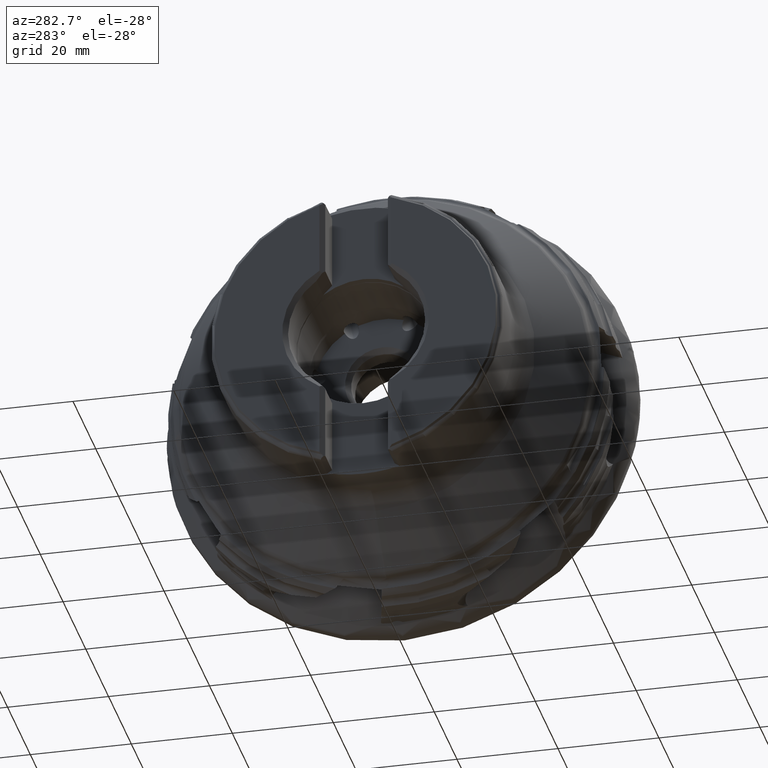
[diagram: clean part render]
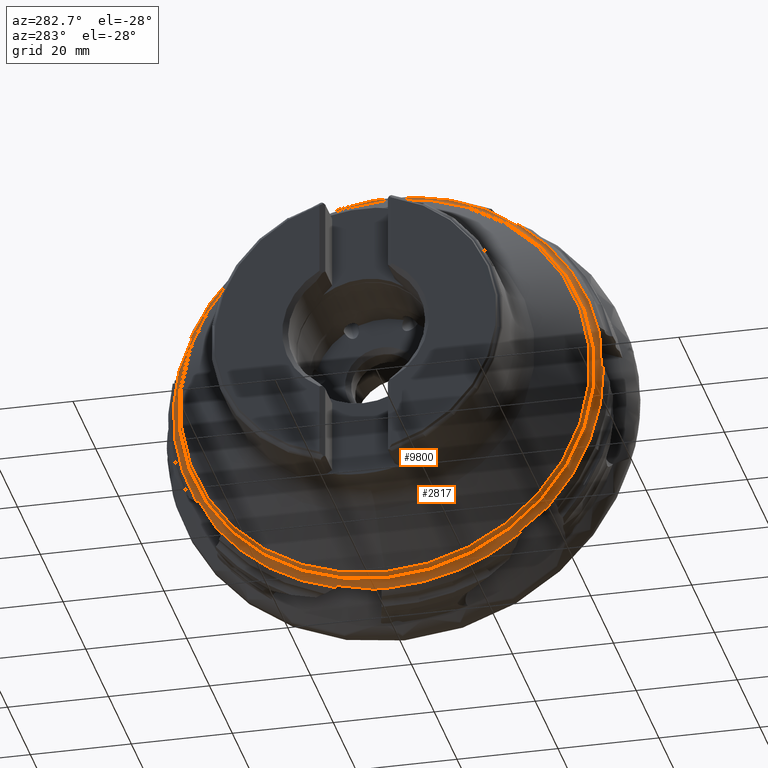
[diagram: same view with one multi-face feature highlighted, each face labeled with its STEP entity id]
A machine part, auxiliary view. The highlighted faces form ONE feature: a constant-radius fillet chain: 2 tangent blend faces with common blend radius 1.89705 mm. The faces share edges in the B-rep.
Their STEP definitions:
[1] entity #9800 (Torus):
#42 = EDGE_CURVE ( 'NONE', #5690, #9942, #3949, .T. ) ;
#65 = VERTEX_POINT ( 'NONE', #6618 ) ;
#110 = ORIENTED_EDGE ( 'NONE', *, *, #5163, .F. ) ;
#153 = CARTESIAN_POINT ( 'NONE',  ( -20.27991268844676000, -25.66552961031469900, 33.98024424121751300 ) ) ;
#171 = CARTESIAN_POINT ( 'NONE',  ( -20.40715901979479000, 38.84886634079023100, 16.50148767896594000 ) ) ;
#187 = EDGE_LOOP ( 'NONE', ( #5314 ) ) ;
#188 = CARTESIAN_POINT ( 'NONE',  ( -20.27390257677669500, 38.00462549020680600, -19.27603672877068100 ) ) ;
#231 = CARTESIAN_POINT ( 'NONE',  ( -20.35922816812485800, 10.23902312688475500, -41.05340053388846400 ) ) ;
#238 = CARTESIAN_POINT ( 'NONE',  ( -20.27390257677748400, 0.0000000000000000000, 0.0000000000000000000 ) ) ;
#291 = EDGE_LOOP ( 'NONE', ( #6587, #3863, #4313, #1670, #110, #9677, #691, #10155, #2792, #5787, #7571, #660, #2691, #8203, #879, #3857, #9333, #5791, #3110, #8363, #7803, #7914, #8976, #7085, #1132, #6197, #7730, #4458 ) ) ;
#306 = CARTESIAN_POINT ( 'NONE',  ( -20.27390257677747000, 3.001633132048042700, -42.50773281604240600 ) ) ;
#419 = CARTESIAN_POINT ( 'NONE',  ( -20.27390257678396400, 17.30588700704285200, 38.94128176523447800 ) ) ;
#443 = CARTESIAN_POINT ( 'NONE',  ( -20.29390607841304800, -26.19366640944782200, -33.50116019667047600 ) ) ;
#559 = DIRECTION ( 'NONE',  ( 1.000000000000000000, -0.0000000000000000000, -0.0000000000000000000 ) ) ;
#625 = VERTEX_POINT ( 'NONE', #1553 ) ;
#630 = CARTESIAN_POINT ( 'NONE',  ( -20.28659722884095700, 39.16528048154000900, 16.64225264424900500 ) ) ;
#660 = ORIENTED_EDGE ( 'NONE', *, *, #6930, .T. ) ;
#671 = VERTEX_POINT ( 'NONE', #2388 ) ;
#691 = ORIENTED_EDGE ( 'NONE', *, *, #3461, .T. ) ;
#740 = B_SPLINE_CURVE_WITH_KNOTS ( 'NONE', 3,
 ( #3265, #900, #9609, #4862 ),
 .UNSPECIFIED., .F., .F.,
 ( 4, 4 ),
 ( 0.003164471214998840600, 0.003502429980398643800 ),
 .UNSPECIFIED. ) ;
#746 = CARTESIAN_POINT ( 'NONE',  ( -20.27390257678396800, -31.64856068802031400, -28.53569268471704100 ) ) ;
#823 = EDGE_CURVE ( 'NONE', #1354, #625, #1187, .T. ) ;
#834 = CARTESIAN_POINT ( 'NONE',  ( -20.29390607841303800, -42.51895811748284600, 0.7576906335383720700 ) ) ;
#851 = CARTESIAN_POINT ( 'NONE',  ( -20.29390607841304100, 37.88363669890150500, -19.32009226059894000 ) ) ;
#863 = CIRCLE ( 'NONE', #3859, 42.61357941571510100 ) ;
#879 = ORIENTED_EDGE ( 'NONE', *, *, #9206, .T. ) ;
#900 = CARTESIAN_POINT ( 'NONE',  ( -20.32175350409022500, 37.79061323697450800, -19.26130577989827900 ) ) ;
#929 = VERTEX_POINT ( 'NONE', #4315 ) ;
#1009 = VERTEX_POINT ( 'NONE', #7599 ) ;
#1028 = DIRECTION ( 'NONE',  ( 0.0000000000000000000, 0.0000000000000000000, -1.000000000000000000 ) ) ;
#1132 = ORIENTED_EDGE ( 'NONE', *, *, #8603, .F. ) ;
#1187 = B_SPLINE_CURVE_WITH_KNOTS ( 'NONE', 3,
 ( #4110, #9636, #4886, #171 ),
 .UNSPECIFIED., .F., .F.,
 ( 4, 4 ),
 ( 0.003164471214998907400, 0.003502429980399479500 ),
 .UNSPECIFIED. ) ;
#1236 = B_SPLINE_CURVE_WITH_KNOTS ( 'NONE', 3,
 ( #5685, #153, #6481, #1737 ),
 .UNSPECIFIED., .F., .F.,
 ( 4, 4 ),
 ( 0.0000000000000000000, 0.0001302810989882844200 ),
 .UNSPECIFIED. ) ;
#1245 = CIRCLE ( 'NONE', #2514, 42.61357941571510100 ) ;
#1281 = CARTESIAN_POINT ( 'NONE',  ( -20.32175350409028500, -26.11821028865592700, -33.42106282706856700 ) ) ;
#1354 = VERTEX_POINT ( 'NONE', #6980 ) ;
#1376 = CARTESIAN_POINT ( 'NONE',  ( -20.27390257677669500, -42.60838944876703500, 0.6650557886314485400 ) ) ;
#1490 = CARTESIAN_POINT ( 'NONE',  ( -20.40715901979700000, -25.40971435915973600, 33.70281780162805100 ) ) ;
#1492 = CIRCLE ( 'NONE', #7173, 42.61357941571510100 ) ;
#1512 = CARTESIAN_POINT ( 'NONE',  ( -20.40715901979621400, 37.61244287389755700, -19.15300636040086200 ) ) ;
#1553 = CARTESIAN_POINT ( 'NONE',  ( -20.40715901979479000, 38.84886634079023100, 16.50148767896594000 ) ) ;
#1639 = CARTESIAN_POINT ( 'NONE',  ( -20.27390257677669500, -42.60838944876703500, 0.6650557886314485400 ) ) ;
#1670 = ORIENTED_EDGE ( 'NONE', *, *, #4742, .T. ) ;
#1684 = VERTEX_POINT ( 'NONE', #2534 ) ;
#1689 = CARTESIAN_POINT ( 'NONE',  ( -20.27390257677669500, -26.17350605154473800, -33.62833227487716000 ) ) ;
#1737 = CARTESIAN_POINT ( 'NONE',  ( -20.29390607841303400, -25.58021611678396600, 33.97187716201502600 ) ) ;
#1824 = CARTESIAN_POINT ( 'NONE',  ( -20.27390257677669200, 39.19520319731422100, 16.72283459647445300 ) ) ;
#1895 = VERTEX_POINT ( 'NONE', #9236 ) ;
#1914 = VERTEX_POINT ( 'NONE', #3711 ) ;
#1928 = B_SPLINE_CURVE_WITH_KNOTS ( 'NONE', 3,
 ( #8856, #4892, #8098, #3326 ),
 .UNSPECIFIED., .F., .F.,
 ( 4, 4 ),
 ( 0.0000000000000000000, 0.0001302810989882629800 ),
 .UNSPECIFIED. ) ;
#2150 = CARTESIAN_POINT ( 'NONE',  ( -20.27991268844676000, 39.17993933996468300, 16.68258859372322400 ) ) ;
#2151 = DIRECTION ( 'NONE',  ( 1.000000000000000000, -0.0000000000000000000, -0.0000000000000000000 ) ) ;
#2278 = CARTESIAN_POINT ( 'NONE',  ( -20.41323448215182500, -26.94036568468216700, -32.49872171569420900 ) ) ;
#2284 = CARTESIAN_POINT ( 'NONE',  ( -20.29390607841303800, -42.51895811748284600, 0.7576906335383720700 ) ) ;
#2311 = CARTESIAN_POINT ( 'NONE',  ( -20.41323092975133900, 37.04242626577263300, -20.24370872581303300 ) ) ;
#2388 = CARTESIAN_POINT ( 'NONE',  ( -20.27390257678396800, 34.05024170782139900, -25.62222063480950500 ) ) ;
#2411 = EDGE_CURVE ( 'NONE', #6949, #6693, #8402, .T. ) ;
#2431 = CARTESIAN_POINT ( 'NONE',  ( -20.28659722884096400, -42.54827805495050100, 0.7265004000892599800 ) ) ;
#2501 = CARTESIAN_POINT ( 'NONE',  ( -20.35940494956136600, 10.23276626978791300, 41.05456990465028600 ) ) ;
#2514 = AXIS2_PLACEMENT_3D ( 'NONE', #9163, #4417, #9977 ) ;
#2534 = CARTESIAN_POINT ( 'NONE',  ( -20.40715901979580600, 10.20115736728382000, 40.95692737439713900 ) ) ;
#2614 = CARTESIAN_POINT ( 'NONE',  ( -20.27390257677748400, 0.0000000000000000000, 0.0000000000000000000 ) ) ;
#2691 = ORIENTED_EDGE ( 'NONE', *, *, #5935, .F. ) ;
#2744 = B_SPLINE_CURVE_WITH_KNOTS ( 'NONE', 3,
 ( #7617, #4406, #3656, #9192, #4449, #10008 ),
 .UNSPECIFIED., .F., .F.,
 ( 4, 2, 4 ),
 ( -0.0009818931826717429200, 0.002711366514450313300, 0.006404626211572369100 ),
 .UNSPECIFIED. ) ;
#2792 = ORIENTED_EDGE ( 'NONE', *, *, #6588, .F. ) ;
#2958 = CARTESIAN_POINT ( 'NONE',  ( -20.35953939043259100, -25.46554710199877600, 33.78858881710355900 ) ) ;
#3012 = B_SPLINE_CURVE_WITH_KNOTS ( 'NONE', 3,
 ( #6540, #7336, #8133, #3355 ),
 .UNSPECIFIED., .F., .F.,
 ( 4, 4 ),
 ( 0.0000000000000000000, 0.0001302810989882779900 ),
 .UNSPECIFIED. ) ;
#3063 = CARTESIAN_POINT ( 'NONE',  ( -20.34817897259623700, -21.40065156276884300, 36.56142175246898800 ) ) ;
#3070 = B_SPLINE_CURVE_WITH_KNOTS ( 'NONE', 3,
 ( #6454, #8016, #2501, #8050 ),
 .UNSPECIFIED., .F., .F.,
 ( 4, 4 ),
 ( 0.001567118524686887400, 0.001903557885389236100 ),
 .UNSPECIFIED. ) ;
#3080 = CARTESIAN_POINT ( 'NONE',  ( -22.03845147591463400, 0.0000000000000000000, 0.0000000000000000000 ) ) ;
#3092 = CARTESIAN_POINT ( 'NONE',  ( -20.40089338809871200, 36.45699305478845500, -21.32627434523523000 ) ) ;
#3110 = ORIENTED_EDGE ( 'NONE', *, *, #2411, .T. ) ;
#3187 = CARTESIAN_POINT ( 'NONE',  ( -20.27991268844676400, 37.96398384506117900, -19.29021356757540700 ) ) ;
#3205 = CARTESIAN_POINT ( 'NONE',  ( -20.27991268844676400, -42.57807569716300800, 0.6956139715343675500 ) ) ;
#3261 = CARTESIAN_POINT ( 'NONE',  ( -20.27390257677669200, 10.23281258224895400, 41.36673418673947100 ) ) ;
#3265 = CARTESIAN_POINT ( 'NONE',  ( -20.29390607841304100, 37.88363669890150500, -19.32009226059894000 ) ) ;
#3288 = DIRECTION ( 'NONE',  ( 1.000000000000000000, -0.0000000000000000000, -0.0000000000000000000 ) ) ;
#3292 = VERTEX_POINT ( 'NONE', #4736 ) ;
#3317 = B_SPLINE_CURVE_WITH_KNOTS ( 'NONE', 3,
 ( #1490, #6246, #7851, #3063, #8636, #3893 ),
 .UNSPECIFIED., .F., .F.,
 ( 4, 2, 4 ),
 ( -0.001047627721252317800, 0.002645610936594658200, 0.006338849594441633600 ),
 .UNSPECIFIED. ) ;
#3326 = CARTESIAN_POINT ( 'NONE',  ( -20.29390607841303100, 10.30295552981852200, 41.25875666865150000 ) ) ;
#3355 = CARTESIAN_POINT ( 'NONE',  ( -20.29390607841304800, -26.19366640944782200, -33.50116019667047600 ) ) ;
#3386 = DIRECTION ( 'NONE',  ( 0.0000000000000000000, 0.0000000000000000000, -1.000000000000000000 ) ) ;
#3396 = CARTESIAN_POINT ( 'NONE',  ( -21.87599999999999800, 0.0000000000000000000, 0.0000000000000000000 ) ) ;
#3403 = FACE_OUTER_BOUND ( 'NONE', #187, .T. ) ;
#3428 = CARTESIAN_POINT ( 'NONE',  ( -20.41323395096392800, 9.023301635353416100, -41.23748385849523100 ) ) ;
#3445 = EDGE_CURVE ( 'NONE', #6579, #1895, #1928, .T. ) ;
#3461 = EDGE_CURVE ( 'NONE', #6243, #1009, #8564, .T. ) ;
#3511 = VERTEX_POINT ( 'NONE', #9811 ) ;
#3629 = CARTESIAN_POINT ( 'NONE',  ( -20.29390607841304100, 10.27284318744911200, -41.26626451883539900 ) ) ;
#3656 = CARTESIAN_POINT ( 'NONE',  ( -20.40087776538373600, 39.77135622710088800, 14.21844165406601100 ) ) ;
#3664 = CARTESIAN_POINT ( 'NONE',  ( -20.35953939043284700, -26.04630198834910000, -33.34295991940537400 ) ) ;
#3685 = TOROIDAL_SURFACE ( 'NONE', #8952, 42.96906103627212300, 1.799999999999992100 ) ;
#3711 = CARTESIAN_POINT ( 'NONE',  ( -20.40715901979621400, 37.61244287389755700, -19.15300636040086200 ) ) ;
#3719 = CARTESIAN_POINT ( 'NONE',  ( -20.27390257677748800, 10.38546810831927700, -41.32867288929734400 ) ) ;
#3757 = VERTEX_POINT ( 'NONE', #3913 ) ;
#3857 = ORIENTED_EDGE ( 'NONE', *, *, #4100, .T. ) ;
#3859 = AXIS2_PLACEMENT_3D ( 'NONE', #8067, #3288, #8853 ) ;
#3863 = ORIENTED_EDGE ( 'NONE', *, *, #4796, .T. ) ;
#3880 = CARTESIAN_POINT ( 'NONE',  ( -20.35940162297679400, -42.30422262180832900, 0.7352329629218658000 ) ) ;
#3893 = CARTESIAN_POINT ( 'NONE',  ( -20.27390257677759800, -19.37211227906679100, 37.95574286543069300 ) ) ;
#3906 = CARTESIAN_POINT ( 'NONE',  ( -20.40715901979479000, -25.97790412654015000, -33.26683045882095500 ) ) ;
#3910 = CARTESIAN_POINT ( 'NONE',  ( -20.30690274784802400, 34.65297839739106000, -24.54878763761789500 ) ) ;
#3913 = CARTESIAN_POINT ( 'NONE',  ( -20.40715901979687500, -42.20196508449470200, 0.7263983692890594300 ) ) ;
#3914 = B_SPLINE_CURVE_WITH_KNOTS ( 'NONE', 3,
 ( #3906, #2278, #4684, #10248, #5490, #746 ),
 .UNSPECIFIED., .F., .F.,
 ( 4, 2, 4 ),
 ( 0.003953705404610570800, 0.007647810164210071400, 0.01134191492380957200 ),
 .UNSPECIFIED. ) ;
#3949 = B_SPLINE_CURVE_WITH_KNOTS ( 'NONE', 3,
 ( #1639, #3205, #2431, #834 ),
 .UNSPECIFIED., .F., .F.,
 ( 4, 4 ),
 ( 0.0000000000000000000, 0.0001302810989882928200 ),
 .UNSPECIFIED. ) ;
#4056 = CARTESIAN_POINT ( 'NONE',  ( -20.27390257677669200, -25.70827279608806700, 33.98531830749436700 ) ) ;
#4089 = CIRCLE ( 'NONE', #7414, 42.61357941571510100 ) ;
#4100 = EDGE_CURVE ( 'NONE', #3757, #7944, #9156, .T. ) ;
#4110 = CARTESIAN_POINT ( 'NONE',  ( -20.29390607841304800, 39.15118159669791700, 16.60183345521797800 ) ) ;
#4211 = DIRECTION ( 'NONE',  ( 0.0000000000000000000, 0.0000000000000000000, -1.000000000000000000 ) ) ;
#4236 = CARTESIAN_POINT ( 'NONE',  ( -20.40088069178405300, 7.821932395374873600, -41.50592600020191700 ) ) ;
#4260 = B_SPLINE_CURVE_WITH_KNOTS ( 'NONE', 3,
 ( #1512, #2311, #3092, #8656, #3910, #9440 ),
 .UNSPECIFIED., .F., .F.,
 ( 4, 2, 4 ),
 ( 0.01027619851399851800, 0.01396412900314024200, 0.01765205949228196600 ),
 .UNSPECIFIED. ) ;
#4313 = ORIENTED_EDGE ( 'NONE', *, *, #8940, .T. ) ;
#4315 = CARTESIAN_POINT ( 'NONE',  ( -20.27390257678396800, 41.51483321428362000, 9.614352490424474600 ) ) ;
#4344 = CARTESIAN_POINT ( 'NONE',  ( -20.40088315475785000, 12.57932372585555600, 40.31978028369266600 ) ) ;
#4353 = EDGE_CURVE ( 'NONE', #3292, #3292, #5765, .T. ) ;
#4384 = CARTESIAN_POINT ( 'NONE',  ( -20.27390257677748800, 10.38546810831927700, -41.32867288929734400 ) ) ;
#4406 = CARTESIAN_POINT ( 'NONE',  ( -20.41323319048122200, 39.31816788200823300, 15.36331604435810200 ) ) ;
#4417 = DIRECTION ( 'NONE',  ( 1.000000000000000000, -0.0000000000000000000, -0.0000000000000000000 ) ) ;
#4449 = CARTESIAN_POINT ( 'NONE',  ( -20.30689495596898600, 41.08007018657465900, 10.76579307443149100 ) ) ;
#4458 = ORIENTED_EDGE ( 'NONE', *, *, #10120, .T. ) ;
#4467 = CARTESIAN_POINT ( 'NONE',  ( -20.34818108690802400, -41.98635433679056900, 5.645450266136964300 ) ) ;
#4674 = CARTESIAN_POINT ( 'NONE',  ( -20.27390257677748400, 0.0000000000000000000, 0.0000000000000000000 ) ) ;
#4678 = DIRECTION ( 'NONE',  ( 0.0000000000000000000, 0.0000000000000000000, -1.000000000000000000 ) ) ;
#4684 = CARTESIAN_POINT ( 'NONE',  ( -20.40087861424351000, -27.89152003629120500, -31.71731041105887200 ) ) ;
#4730 = B_SPLINE_CURVE_WITH_KNOTS ( 'NONE', 3,
 ( #2284, #7017, #3880, #9403 ),
 .UNSPECIFIED., .F., .F.,
 ( 4, 4 ),
 ( 0.0001329506704739350000, 0.0004710185894718659800 ),
 .UNSPECIFIED. ) ;
#4736 = CARTESIAN_POINT ( 'NONE',  ( -21.87599999999999800, 0.0000000000000000000, -41.17640671433129300 ) ) ;
#4742 = EDGE_CURVE ( 'NONE', #1914, #671, #4260, .T. ) ;
#4796 = EDGE_CURVE ( 'NONE', #9958, #3511, #7218, .T. ) ;
#4862 = CARTESIAN_POINT ( 'NONE',  ( -20.40715901979621400, 37.61244287389755700, -19.15300636040086200 ) ) ;
#4886 = CARTESIAN_POINT ( 'NONE',  ( -20.35953939043285400, 38.94559675353002600, 16.53491206407770500 ) ) ;
#4892 = CARTESIAN_POINT ( 'NONE',  ( -20.27991268844676000, 10.25576845051934200, 41.33032327916234300 ) ) ;
#4954 = CARTESIAN_POINT ( 'NONE',  ( -20.32157322170211000, 10.25628889524831400, -41.15819560932311600 ) ) ;
#5024 = CARTESIAN_POINT ( 'NONE',  ( -20.30689557089260700, 4.206931957792250800, -42.25844278817286400 ) ) ;
#5038 = EDGE_CURVE ( 'NONE', #6579, #5725, #1245, .T. ) ;
#5134 = CARTESIAN_POINT ( 'NONE',  ( -20.30689694960690500, 16.12458736901212600, 39.28703970650355600 ) ) ;
#5163 = EDGE_CURVE ( 'NONE', #7097, #671, #7315, .T. ) ;
#5168 = CARTESIAN_POINT ( 'NONE',  ( -20.29390607841303400, -25.58021611678396600, 33.97187716201502600 ) ) ;
#5268 = CARTESIAN_POINT ( 'NONE',  ( -20.27390257677759800, -41.83619676499557700, 8.102455853630848600 ) ) ;
#5272 = EDGE_CURVE ( 'NONE', #1895, #1684, #3070, .T. ) ;
#5274 = VERTEX_POINT ( 'NONE', #4056 ) ;
#5293 = CARTESIAN_POINT ( 'NONE',  ( -20.27390257677748400, 0.0000000000000000000, 0.0000000000000000000 ) ) ;
#5302 = EDGE_CURVE ( 'NONE', #5274, #6949, #1236, .T. ) ;
#5314 = ORIENTED_EDGE ( 'NONE', *, *, #4353, .T. ) ;
#5482 = DIRECTION ( 'NONE',  ( 0.0000000000000000000, 0.0000000000000000000, -1.000000000000000000 ) ) ;
#5490 = CARTESIAN_POINT ( 'NONE',  ( -20.30689538722732500, -30.71006663645979600, -29.33199842146708400 ) ) ;
#5601 = CARTESIAN_POINT ( 'NONE',  ( -20.28659722884095400, 37.92366218254099400, -19.30491167908367300 ) ) ;
#5685 = CARTESIAN_POINT ( 'NONE',  ( -20.27390257677669200, -25.70827279608806700, 33.98531830749436700 ) ) ;
#5690 = VERTEX_POINT ( 'NONE', #1376 ) ;
#5692 = B_SPLINE_CURVE_WITH_KNOTS ( 'NONE', 3,
 ( #10127, #2150, #630, #6170 ),
 .UNSPECIFIED., .F., .F.,
 ( 4, 4 ),
 ( 0.0000000000000000000, 0.0001302810989882892900 ),
 .UNSPECIFIED. ) ;
#5725 = VERTEX_POINT ( 'NONE', #6129 ) ;
#5761 = CARTESIAN_POINT ( 'NONE',  ( -20.40715901979700000, -25.40971435915973600, 33.70281780162805100 ) ) ;
#5765 = CIRCLE ( 'NONE', #10007, 41.17640671433129300 ) ;
#5767 = CARTESIAN_POINT ( 'NONE',  ( -20.40715901979478600, 10.22102535954842200, -40.95197372756430100 ) ) ;
#5772 = DIRECTION ( 'NONE',  ( 1.000000000000000000, -0.0000000000000000000, -0.0000000000000000000 ) ) ;
#5787 = ORIENTED_EDGE ( 'NONE', *, *, #8558, .T. ) ;
#5791 = ORIENTED_EDGE ( 'NONE', *, *, #5302, .T. ) ;
#5854 = VERTEX_POINT ( 'NONE', #5952 ) ;
#5935 = EDGE_CURVE ( 'NONE', #5690, #9064, #4089, .T. ) ;
#5944 = CARTESIAN_POINT ( 'NONE',  ( -20.27390257677759800, -41.83619676499557700, 8.102455853630848600 ) ) ;
#5952 = CARTESIAN_POINT ( 'NONE',  ( -20.27390257678396400, 17.30588700704285200, 38.94128176523447800 ) ) ;
#6101 = DIRECTION ( 'NONE',  ( 0.0000000000000000000, 0.0000000000000000000, -1.000000000000000000 ) ) ;
#6129 = CARTESIAN_POINT ( 'NONE',  ( -20.27390257677759800, -19.37211227906679100, 37.95574286543069300 ) ) ;
#6170 = CARTESIAN_POINT ( 'NONE',  ( -20.29390607841304800, 39.15118159669791700, 16.60183345521797800 ) ) ;
#6197 = ORIENTED_EDGE ( 'NONE', *, *, #10216, .T. ) ;
#6243 = VERTEX_POINT ( 'NONE', #6634 ) ;
#6246 = CARTESIAN_POINT ( 'NONE',  ( -20.41323313572389600, -24.41889453689210400, 34.43352113357813900 ) ) ;
#6454 = CARTESIAN_POINT ( 'NONE',  ( -20.29390607841303100, 10.30295552981852200, 41.25875666865150000 ) ) ;
#6481 = CARTESIAN_POINT ( 'NONE',  ( -20.28659722884097100, -25.62284551210716900, 33.97577896289358500 ) ) ;
#6508 = B_SPLINE_CURVE_WITH_KNOTS ( 'NONE', 3,
 ( #4384, #8360, #8394, #3629 ),
 .UNSPECIFIED., .F., .F.,
 ( 4, 4 ),
 ( 0.0000000000000000000, 0.0001302810989825485300 ),
 .UNSPECIFIED. ) ;
#6532 = CARTESIAN_POINT ( 'NONE',  ( -20.29390607841304100, 10.27284318744911200, -41.26626451883539900 ) ) ;
#6540 = CARTESIAN_POINT ( 'NONE',  ( -20.27390257677669500, -26.17350605154473800, -33.62833227487716000 ) ) ;
#6575 = VERTEX_POINT ( 'NONE', #1689 ) ;
#6579 = VERTEX_POINT ( 'NONE', #3261 ) ;
#6587 = ORIENTED_EDGE ( 'NONE', *, *, #7424, .F. ) ;
#6588 = EDGE_CURVE ( 'NONE', #6575, #65, #863, .T. ) ;
#6618 = CARTESIAN_POINT ( 'NONE',  ( -20.27390257677747000, 3.001633132048042700, -42.50773281604240600 ) ) ;
#6634 = CARTESIAN_POINT ( 'NONE',  ( -20.29390607841304100, 10.27284318744911200, -41.26626451883539900 ) ) ;
#6693 = VERTEX_POINT ( 'NONE', #5761 ) ;
#6801 = CARTESIAN_POINT ( 'NONE',  ( -20.27390257678396800, -31.64856068802031400, -28.53569268471704100 ) ) ;
#6806 = EDGE_CURVE ( 'NONE', #7097, #6243, #6508, .T. ) ;
#6885 = CARTESIAN_POINT ( 'NONE',  ( -20.27390257677748400, 0.0000000000000000000, 0.0000000000000000000 ) ) ;
#6930 = EDGE_CURVE ( 'NONE', #7423, #9064, #3914, .T. ) ;
#6949 = VERTEX_POINT ( 'NONE', #9436 ) ;
#6980 = CARTESIAN_POINT ( 'NONE',  ( -20.29390607841304800, 39.15118159669791700, 16.60183345521797800 ) ) ;
#7017 = CARTESIAN_POINT ( 'NONE',  ( -20.32167312020075700, -42.40989461894096700, 0.7456673031717682100 ) ) ;
#7085 = ORIENTED_EDGE ( 'NONE', *, *, #8128, .T. ) ;
#7097 = VERTEX_POINT ( 'NONE', #3719 ) ;
#7155 = CARTESIAN_POINT ( 'NONE',  ( -20.27390257677669500, 38.00462549020680600, -19.27603672877068100 ) ) ;
#7156 = B_SPLINE_CURVE_WITH_KNOTS ( 'NONE', 3,
 ( #8319, #9086, #4344, #9904, #5134, #419 ),
 .UNSPECIFIED., .F., .F.,
 ( 4, 2, 4 ),
 ( 0.007166387586268358300, 0.01085870845021976900, 0.01455102931417118000 ),
 .UNSPECIFIED. ) ;
#7173 = AXIS2_PLACEMENT_3D ( 'NONE', #5293, #559, #6101 ) ;
#7218 = B_SPLINE_CURVE_WITH_KNOTS ( 'NONE', 3,
 ( #7155, #3187, #5601, #851 ),
 .UNSPECIFIED., .F., .F.,
 ( 4, 4 ),
 ( 0.0000000000000000000, 0.0001302810989882799200 ),
 .UNSPECIFIED. ) ;
#7287 = AXIS2_PLACEMENT_3D ( 'NONE', #4674, #10238, #5482 ) ;
#7315 = CIRCLE ( 'NONE', #7287, 42.61357941571510100 ) ;
#7336 = CARTESIAN_POINT ( 'NONE',  ( -20.27991268844676400, -26.17966763041012600, -33.58573226285223300 ) ) ;
#7393 = EDGE_CURVE ( 'NONE', #8801, #7423, #8957, .T. ) ;
#7414 = AXIS2_PLACEMENT_3D ( 'NONE', #6885, #2151, #7706 ) ;
#7423 = VERTEX_POINT ( 'NONE', #8467 ) ;
#7424 = EDGE_CURVE ( 'NONE', #9958, #929, #1492, .T. ) ;
#7571 = ORIENTED_EDGE ( 'NONE', *, *, #7393, .T. ) ;
#7599 = CARTESIAN_POINT ( 'NONE',  ( -20.40715901979478600, 10.22102535954842200, -40.95197372756430100 ) ) ;
#7617 = CARTESIAN_POINT ( 'NONE',  ( -20.40715901979479000, 38.84886634079023100, 16.50148767896594000 ) ) ;
#7636 = CARTESIAN_POINT ( 'NONE',  ( -20.40715901979687500, -42.20196508449470200, 0.7263983692890594300 ) ) ;
#7664 = FACE_OUTER_BOUND ( 'NONE', #291, .T. ) ;
#7706 = DIRECTION ( 'NONE',  ( 0.0000000000000000000, 0.0000000000000000000, -1.000000000000000000 ) ) ;
#7730 = ORIENTED_EDGE ( 'NONE', *, *, #823, .T. ) ;
#7741 = CARTESIAN_POINT ( 'NONE',  ( -20.32175350409019300, -25.52237747999835800, 33.87826142147528000 ) ) ;
#7803 = ORIENTED_EDGE ( 'NONE', *, *, #5038, .F. ) ;
#7824 = CIRCLE ( 'NONE', #8166, 42.61357941571510100 ) ;
#7851 = CARTESIAN_POINT ( 'NONE',  ( -20.40087782155170300, -23.41766321307074600, 35.15021872992230800 ) ) ;
#7914 = ORIENTED_EDGE ( 'NONE', *, *, #3445, .T. ) ;
#7944 = VERTEX_POINT ( 'NONE', #5944 ) ;
#8016 = CARTESIAN_POINT ( 'NONE',  ( -20.32141572186726800, 10.26704243420666200, 41.15615314744164300 ) ) ;
#8050 = CARTESIAN_POINT ( 'NONE',  ( -20.40715901979580600, 10.20115736728382000, 40.95692737439713900 ) ) ;
#8067 = CARTESIAN_POINT ( 'NONE',  ( -20.27390257677748400, 0.0000000000000000000, 0.0000000000000000000 ) ) ;
#8098 = CARTESIAN_POINT ( 'NONE',  ( -20.28659722884095700, 10.27916025087869100, 41.29434141392095400 ) ) ;
#8128 = EDGE_CURVE ( 'NONE', #1684, #5854, #7156, .T. ) ;
#8133 = CARTESIAN_POINT ( 'NONE',  ( -20.28659722884095700, -26.18640196029459200, -33.54334689094979200 ) ) ;
#8166 = AXIS2_PLACEMENT_3D ( 'NONE', #238, #5772, #1028 ) ;
#8167 = DIRECTION ( 'NONE',  ( 1.000000000000000000, -0.0000000000000000000, -0.0000000000000000000 ) ) ;
#8199 = CARTESIAN_POINT ( 'NONE',  ( -20.40715901979478600, 10.22102535954842200, -40.95197372756430100 ) ) ;
#8203 = ORIENTED_EDGE ( 'NONE', *, *, #42, .T. ) ;
#8319 = CARTESIAN_POINT ( 'NONE',  ( -20.40715901979580600, 10.20115736728382000, 40.95692737439713900 ) ) ;
#8360 = CARTESIAN_POINT ( 'NONE',  ( -20.27991268844735000, 10.34810539400688400, -41.30730109345130100 ) ) ;
#8363 = ORIENTED_EDGE ( 'NONE', *, *, #8786, .T. ) ;
#8394 = CARTESIAN_POINT ( 'NONE',  ( -20.28659722884126600, 10.31055919768177800, -41.28651277722184400 ) ) ;
#8402 = B_SPLINE_CURVE_WITH_KNOTS ( 'NONE', 3,
 ( #5168, #7741, #2958, #8527 ),
 .UNSPECIFIED., .F., .F.,
 ( 4, 4 ),
 ( 0.003164471214998915700, 0.003502429980398301700 ),
 .UNSPECIFIED. ) ;
#8440 = CARTESIAN_POINT ( 'NONE',  ( -20.41323169783647600, -42.16776567193719000, 1.956749613221262300 ) ) ;
#8467 = CARTESIAN_POINT ( 'NONE',  ( -20.40715901979479000, -25.97790412654015000, -33.26683045882095500 ) ) ;
#8527 = CARTESIAN_POINT ( 'NONE',  ( -20.40715901979700000, -25.40971435915973600, 33.70281780162805100 ) ) ;
#8558 = EDGE_CURVE ( 'NONE', #6575, #8801, #3012, .T. ) ;
#8564 = B_SPLINE_CURVE_WITH_KNOTS ( 'NONE', 3,
 ( #6532, #4954, #231, #5767 ),
 .UNSPECIFIED., .F., .F.,
 ( 4, 4 ),
 ( 0.001436480049318860400, 0.001774369171922492300 ),
 .UNSPECIFIED. ) ;
#8590 = EDGE_CURVE ( 'NONE', #5274, #7944, #7824, .T. ) ;
#8603 = EDGE_CURVE ( 'NONE', #8609, #5854, #9891, .T. ) ;
#8609 = VERTEX_POINT ( 'NONE', #1824 ) ;
#8636 = CARTESIAN_POINT ( 'NONE',  ( -20.30689483606099100, -20.38416778275383100, 37.25533801452174700 ) ) ;
#8647 = EDGE_CURVE ( 'NONE', #1009, #65, #9612, .T. ) ;
#8656 = CARTESIAN_POINT ( 'NONE',  ( -20.34820359243747100, 35.26266630907922900, -23.47902343368862800 ) ) ;
#8786 = EDGE_CURVE ( 'NONE', #6693, #5725, #3317, .T. ) ;
#8801 = VERTEX_POINT ( 'NONE', #10232 ) ;
#8839 = CARTESIAN_POINT ( 'NONE',  ( -20.29390607841303800, -42.51895811748284600, 0.7576906335383720700 ) ) ;
#8853 = DIRECTION ( 'NONE',  ( 0.0000000000000000000, 0.0000000000000000000, -1.000000000000000000 ) ) ;
#8856 = CARTESIAN_POINT ( 'NONE',  ( -20.27390257677669200, 10.23281258224895400, 41.36673418673947100 ) ) ;
#8940 = EDGE_CURVE ( 'NONE', #3511, #1914, #740, .T. ) ;
#8952 = AXIS2_PLACEMENT_3D ( 'NONE', #3080, #9388, #4678 ) ;
#8953 = DIRECTION ( 'NONE',  ( 1.000000000000000000, -0.0000000000000000000, -0.0000000000000000000 ) ) ;
#8957 = B_SPLINE_CURVE_WITH_KNOTS ( 'NONE', 3,
 ( #443, #1281, #3664, #9196 ),
 .UNSPECIFIED., .F., .F.,
 ( 4, 4 ),
 ( 0.003164471214999375800, 0.003502429980399945300 ),
 .UNSPECIFIED. ) ;
#8976 = ORIENTED_EDGE ( 'NONE', *, *, #5272, .T. ) ;
#9064 = VERTEX_POINT ( 'NONE', #6801 ) ;
#9086 = CARTESIAN_POINT ( 'NONE',  ( -20.41323091614217200, 11.39212826932020000, 40.64687559702505100 ) ) ;
#9156 = B_SPLINE_CURVE_WITH_KNOTS ( 'NONE', 3,
 ( #7636, #8440, #9209, #4467, #10031, #5268 ),
 .UNSPECIFIED., .F., .F.,
 ( 4, 2, 4 ),
 ( 0.01083361694811104400, 0.01451284542840051100, 0.01819207390868998000 ),
 .UNSPECIFIED. ) ;
#9163 = CARTESIAN_POINT ( 'NONE',  ( -20.27390257677748400, 0.0000000000000000000, 0.0000000000000000000 ) ) ;
#9192 = CARTESIAN_POINT ( 'NONE',  ( -20.34817804723059700, 40.65269014027690300, 11.91991881958615300 ) ) ;
#9196 = CARTESIAN_POINT ( 'NONE',  ( -20.40715901979479000, -25.97790412654015000, -33.26683045882095500 ) ) ;
#9206 = EDGE_CURVE ( 'NONE', #9942, #3757, #4730, .T. ) ;
#9209 = CARTESIAN_POINT ( 'NONE',  ( -20.40088014648034000, -42.11611024884615500, 3.187123028714284900 ) ) ;
#9236 = CARTESIAN_POINT ( 'NONE',  ( -20.29390607841303100, 10.30295552981852200, 41.25875666865150000 ) ) ;
#9333 = ORIENTED_EDGE ( 'NONE', *, *, #8590, .F. ) ;
#9388 = DIRECTION ( 'NONE',  ( 1.000000000000000000, -0.0000000000000000000, -0.0000000000000000000 ) ) ;
#9403 = CARTESIAN_POINT ( 'NONE',  ( -20.40715901979687500, -42.20196508449470200, 0.7263983692890594300 ) ) ;
#9436 = CARTESIAN_POINT ( 'NONE',  ( -20.29390607841303400, -25.58021611678396600, 33.97187716201502600 ) ) ;
#9440 = CARTESIAN_POINT ( 'NONE',  ( -20.27390257678396800, 34.05024170782139900, -25.62222063480950500 ) ) ;
#9609 = CARTESIAN_POINT ( 'NONE',  ( -20.35953939043268000, 37.70022454916544800, -19.20562137494890100 ) ) ;
#9612 = B_SPLINE_CURVE_WITH_KNOTS ( 'NONE', 3,
 ( #8199, #3428, #4236, #9784, #5024, #306 ),
 .UNSPECIFIED., .F., .F.,
 ( 4, 2, 4 ),
 ( 0.003702393387956516700, 0.007395857845211630300, 0.01108932230246674500 ),
 .UNSPECIFIED. ) ;
#9636 = CARTESIAN_POINT ( 'NONE',  ( -20.32175350409028900, 39.04635421108960000, 16.56836057054050200 ) ) ;
#9677 = ORIENTED_EDGE ( 'NONE', *, *, #6806, .T. ) ;
#9747 = AXIS2_PLACEMENT_3D ( 'NONE', #2614, #8167, #3386 ) ;
#9784 = CARTESIAN_POINT ( 'NONE',  ( -20.34817789568614900, 5.413655614019654100, -42.01688043604465900 ) ) ;
#9800 = ADVANCED_FACE ( 'NONE', ( #3403, #7664 ), #3685, .F. ) ;
#9811 = CARTESIAN_POINT ( 'NONE',  ( -20.29390607841304100, 37.88363669890150500, -19.32009226059894000 ) ) ;
#9891 = CIRCLE ( 'NONE', #9747, 42.61357941571510100 ) ;
#9904 = CARTESIAN_POINT ( 'NONE',  ( -20.34818379900426100, 14.94555252588115300, 39.64032066027960600 ) ) ;
#9942 = VERTEX_POINT ( 'NONE', #8839 ) ;
#9958 = VERTEX_POINT ( 'NONE', #188 ) ;
#9977 = DIRECTION ( 'NONE',  ( 0.0000000000000000000, 0.0000000000000000000, -1.000000000000000000 ) ) ;
#10007 = AXIS2_PLACEMENT_3D ( 'NONE', #3396, #8953, #4211 ) ;
#10008 = CARTESIAN_POINT ( 'NONE',  ( -20.27390257678396800, 41.51483321428362000, 9.614352490424474600 ) ) ;
#10031 = CARTESIAN_POINT ( 'NONE',  ( -20.30689574415859200, -41.90735575367879300, 6.873699129577481400 ) ) ;
#10120 = EDGE_CURVE ( 'NONE', #625, #929, #2744, .T. ) ;
#10127 = CARTESIAN_POINT ( 'NONE',  ( -20.27390257677669200, 39.19520319731422100, 16.72283459647445300 ) ) ;
#10155 = ORIENTED_EDGE ( 'NONE', *, *, #8647, .T. ) ;
#10216 = EDGE_CURVE ( 'NONE', #8609, #1354, #5692, .T. ) ;
#10232 = CARTESIAN_POINT ( 'NONE',  ( -20.29390607841304800, -26.19366640944782200, -33.50116019667047600 ) ) ;
#10238 = DIRECTION ( 'NONE',  ( 1.000000000000000000, -0.0000000000000000000, -0.0000000000000000000 ) ) ;
#10248 = CARTESIAN_POINT ( 'NONE',  ( -20.34818130789116000, -29.77666022147860000, -30.13428959753253300 ) ) ;
[2] entity #2817 (Torus):
#36 = ORIENTED_EDGE ( 'NONE', *, *, #4353, .F. ) ;
#449 = CIRCLE ( 'NONE', #5071, 40.54549999999998300 ) ;
#614 = EDGE_LOOP ( 'NONE', ( #36 ) ) ;
#996 = EDGE_CURVE ( 'NONE', #5906, #5906, #449, .T. ) ;
#1197 = DIRECTION ( 'NONE',  ( 0.0000000000000000000, 0.0000000000000000000, -1.000000000000000000 ) ) ;
#1604 = AXIS2_PLACEMENT_3D ( 'NONE', #5949, #9889, #1197 ) ;
#2817 = ADVANCED_FACE ( 'NONE', ( #8255, #7158 ), #9856, .T. ) ;
#2839 = CARTESIAN_POINT ( 'NONE',  ( -23.15900000000001000, 0.0000000000000000000, 0.0000000000000000000 ) ) ;
#3292 = VERTEX_POINT ( 'NONE', #4736 ) ;
#3396 = CARTESIAN_POINT ( 'NONE',  ( -21.87599999999999800, 0.0000000000000000000, 0.0000000000000000000 ) ) ;
#3628 = DIRECTION ( 'NONE',  ( 0.0000000000000000000, 0.0000000000000000000, -1.000000000000000000 ) ) ;
#4211 = DIRECTION ( 'NONE',  ( 0.0000000000000000000, 0.0000000000000000000, -1.000000000000000000 ) ) ;
#4353 = EDGE_CURVE ( 'NONE', #3292, #3292, #5765, .T. ) ;
#4736 = CARTESIAN_POINT ( 'NONE',  ( -21.87599999999999800, 0.0000000000000000000, -41.17640671433129300 ) ) ;
#5071 = AXIS2_PLACEMENT_3D ( 'NONE', #2839, #8393, #3628 ) ;
#5508 = CARTESIAN_POINT ( 'NONE',  ( -23.15900000000001000, 0.0000000000000000000, -40.54549999999998300 ) ) ;
#5765 = CIRCLE ( 'NONE', #10007, 41.17640671433129300 ) ;
#5906 = VERTEX_POINT ( 'NONE', #5508 ) ;
#5949 = CARTESIAN_POINT ( 'NONE',  ( -21.69602913562421500, 0.0000000000000000000, 0.0000000000000000000 ) ) ;
#7158 = FACE_OUTER_BOUND ( 'NONE', #614, .T. ) ;
#7985 = EDGE_LOOP ( 'NONE', ( #10138 ) ) ;
#8255 = FACE_OUTER_BOUND ( 'NONE', #7985, .T. ) ;
#8393 = DIRECTION ( 'NONE',  ( 1.000000000000000000, -0.0000000000000000000, -0.0000000000000000000 ) ) ;
#8953 = DIRECTION ( 'NONE',  ( 1.000000000000000000, -0.0000000000000000000, -0.0000000000000000000 ) ) ;
#9856 = TOROIDAL_SURFACE ( 'NONE', #1604, 39.19042569427457300, 1.994118884131449400 ) ;
#9889 = DIRECTION ( 'NONE',  ( 1.000000000000000000, -0.0000000000000000000, -0.0000000000000000000 ) ) ;
#10007 = AXIS2_PLACEMENT_3D ( 'NONE', #3396, #8953, #4211 ) ;
#10138 = ORIENTED_EDGE ( 'NONE', *, *, #996, .T. ) ;